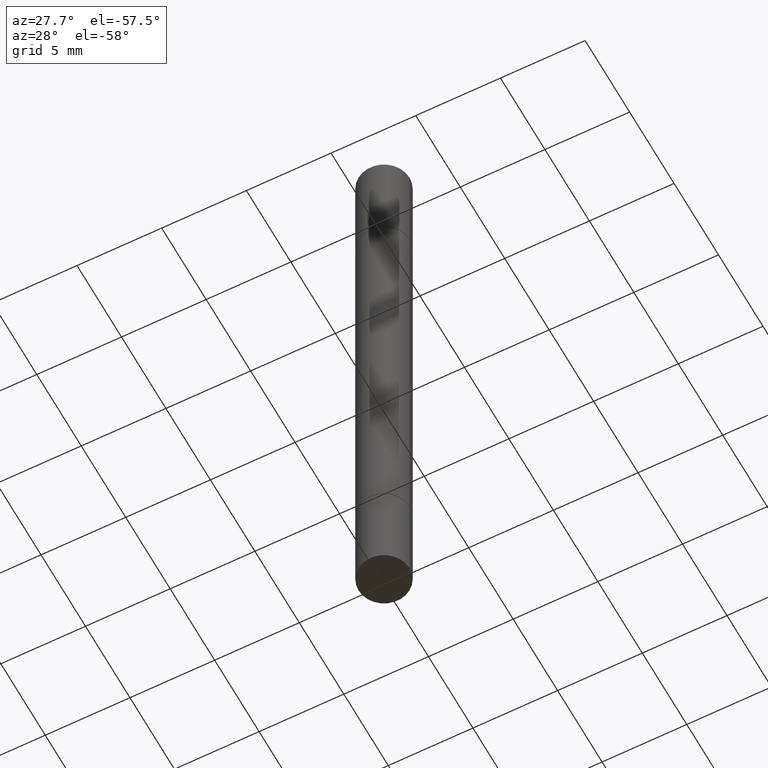
[diagram: clean part render]
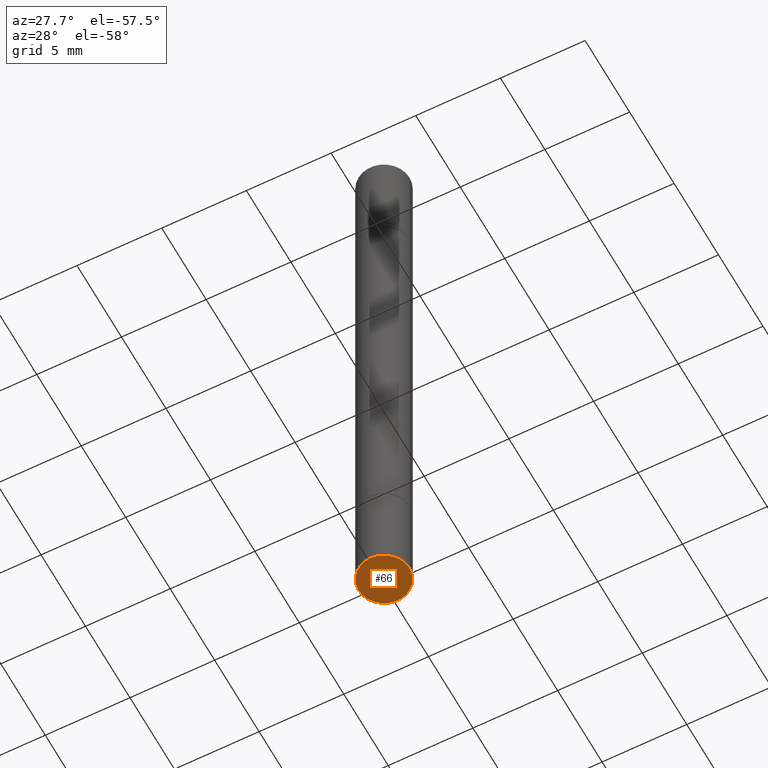
[diagram: same view with one face highlighted and labeled with its STEP entity id]
A machine part, auxiliary view. The second image highlights one B-rep face of the part: STEP entity #66.
In plain terms, the highlighted planar face has unit normal (0, -0, -1).
Its self-contained STEP definition (entity closure, byte-faithful):
#22 = VERTEX_POINT ( 'NONE', #405 ) ;
#50 = CARTESIAN_POINT ( 'NONE',  ( 3.658665880933582389E-29, -5.223605231043229660E-15, -1.496099999999999985 ) ) ;
#66 = ADVANCED_FACE ( 'NONE', ( #462 ), #411, .T. ) ;
#71 = VERTEX_POINT ( 'NONE', #559 ) ;
#136 = CIRCLE ( 'NONE', #214, 0.05905000000000001914 ) ;
#146 = EDGE_CURVE ( 'NONE', #71, #22, #275, .T. ) ;
#159 = AXIS2_PLACEMENT_3D ( 'NONE', #349, #618, #570 ) ;
#163 = DIRECTION ( 'NONE',  ( -2.445468806185136597E-29, 3.491481338843145583E-15, 1.000000000000000000 ) ) ;
#214 = AXIS2_PLACEMENT_3D ( 'NONE', #248, #363, #260 ) ;
#225 = DIRECTION ( 'NONE',  ( 1.000000000000000000, -6.982962677686270655E-15, 0.000000000000000000 ) ) ;
#248 = CARTESIAN_POINT ( 'NONE',  ( 3.658665880933582389E-29, -5.223605231043229660E-15, -1.496099999999999985 ) ) ;
#260 = DIRECTION ( 'NONE',  ( 1.000000000000000000, -6.982962677686270655E-15, 0.000000000000000000 ) ) ;
#275 = CIRCLE ( 'NONE', #564, 0.05905000000000001914 ) ;
#310 = EDGE_CURVE ( 'NONE', #22, #71, #136, .T. ) ;
#330 = EDGE_LOOP ( 'NONE', ( #439, #598 ) ) ;
#349 = CARTESIAN_POINT ( 'NONE',  ( 4.123439461174106654E-16, 0.05904999999999479415, -1.496100000000000207 ) ) ;
#363 = DIRECTION ( 'NONE',  ( -2.445468806185136597E-29, 3.491481338843145583E-15, 1.000000000000000000 ) ) ;
#405 = CARTESIAN_POINT ( 'NONE',  ( -0.05905000000000001914, -4.391685799459515247E-15, -1.496099999999999985 ) ) ;
#411 = PLANE ( 'NONE',  #159 ) ;
#439 = ORIENTED_EDGE ( 'NONE', *, *, #146, .F. ) ;
#462 = FACE_OUTER_BOUND ( 'NONE', #330, .T. ) ;
#559 = CARTESIAN_POINT ( 'NONE',  ( 0.05905000000000001914, -5.635949177160603791E-15, -1.496099999999999985 ) ) ;
#564 = AXIS2_PLACEMENT_3D ( 'NONE', #50, #163, #225 ) ;
#570 = DIRECTION ( 'NONE',  ( -1.000000000000000000, 6.982962677686265922E-15, -4.876176775795935793E-29 ) ) ;
#598 = ORIENTED_EDGE ( 'NONE', *, *, #310, .F. ) ;
#618 = DIRECTION ( 'NONE',  ( 2.438088387897960049E-29, -3.491481338843145188E-15, -1.000000000000000000 ) ) ;